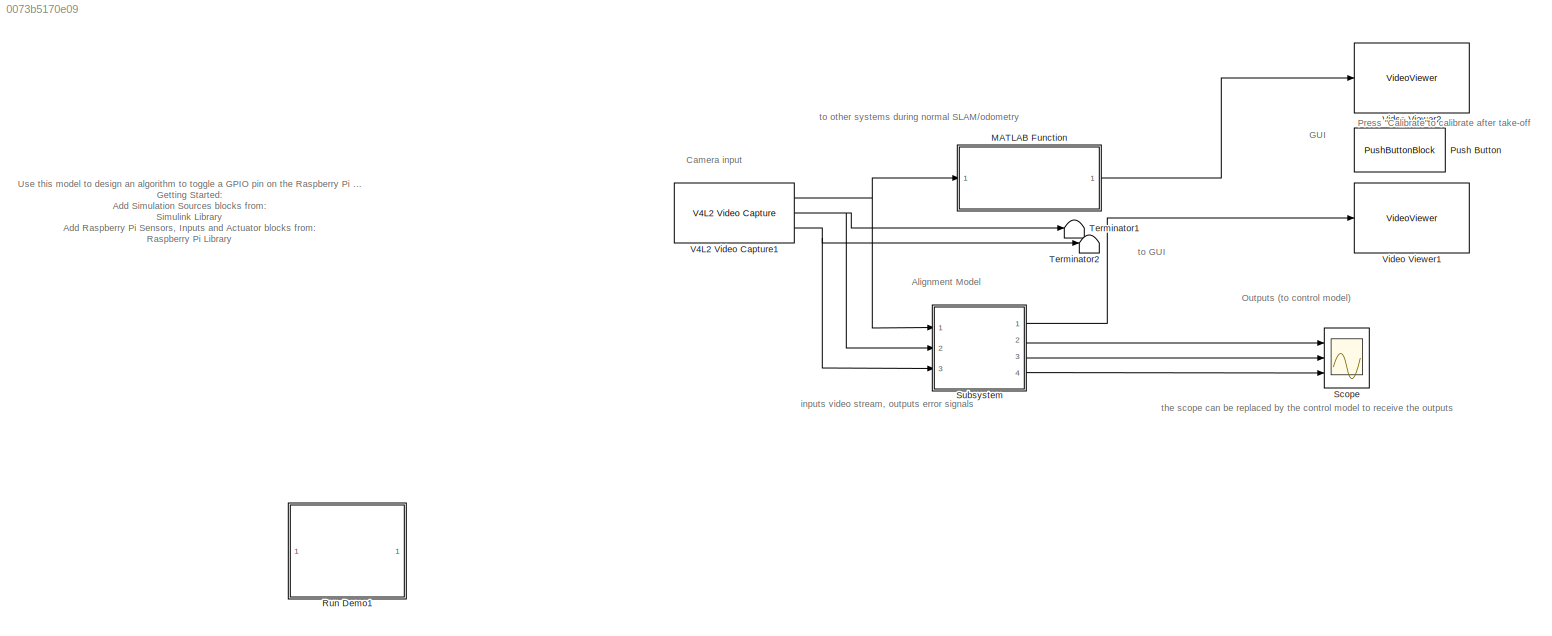
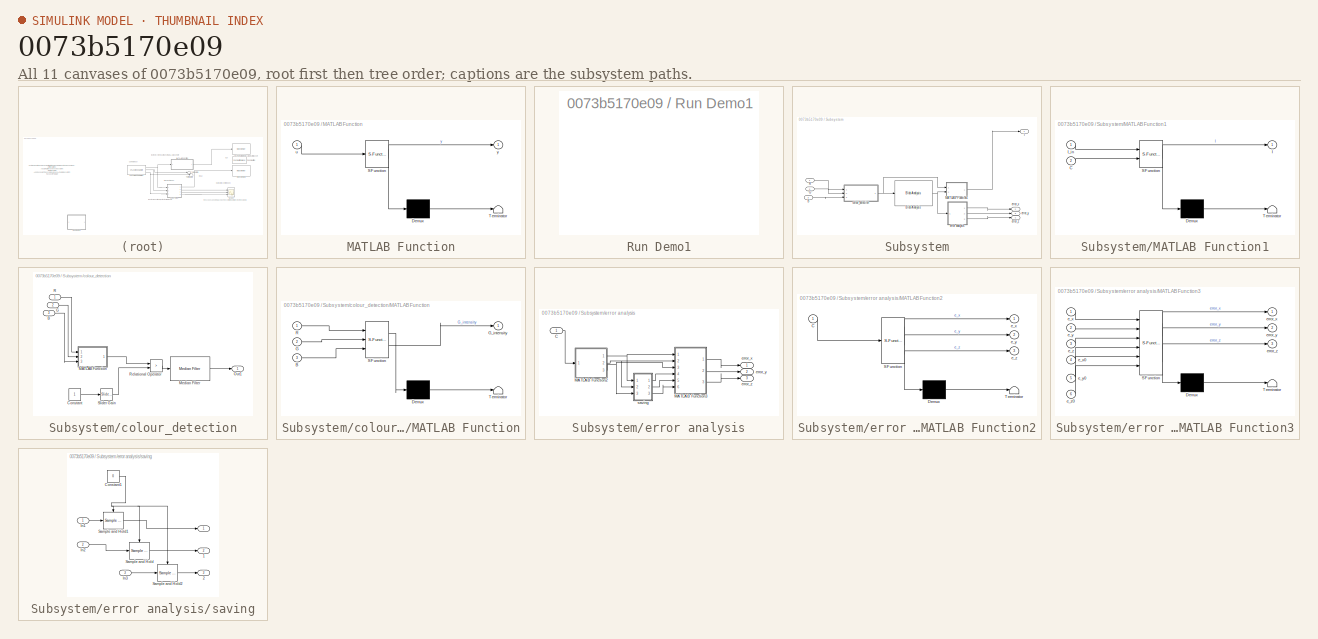
[diagram: thumbnail index - all 11 canvases of the model, root first then tree order]
MODEL slx_0073b5170e09
KIND model
CONFIG AbsTol = auto
CONFIG EnableMultiTasking = on
CONFIG FixedStep = auto
CONFIG MaxStep = auto
CONFIG MinStep = auto
CONFIG RelTol = 1e-3
CONFIG SampleTimeConstraint = Unconstrained
CONFIG Solver = ode45
CONFIG SolverName = ode45
CONFIG StartTime = 0.0
CONFIG StopTime = 10.0
BLOCK [SubSystem] MATLAB Function
  ErrorFcn = Stateflow.Translate.translate
  PermitHierarchicalResolution = ExplicitOnly
  Ports = [1, 1]
  RequestExecContextInheritance = off
  SFBlockType = MATLAB Function
  TreatAsAtomicUnit = on
BLOCK [Demux] MATLAB Function/ Demux 
  Outputs = 1
  Ports = [1, 1]
BLOCK [S-Function] MATLAB Function/ SFunction 
  EnableBusSupport = on
  FunctionName = sf_sfun
  PortCounts = [1 2]
  Ports = [1, 2]
  SFcnIsStateOwnerBlock = off
  SFunctionDeploymentMode = off
  Tag = Stateflow S-Function 5
BLOCK [Terminator] MATLAB Function/ Terminator 
BLOCK [Inport] MATLAB Function/u
BLOCK [Outport] MATLAB Function/y
BLOCK [PushButtonBlock] Push Button
  ButtonText = Callibrate
BLOCK [SubSystem] Run Demo1
  Description = Controls host-side RTDX processing.
  Ports = []
  RequestExecContextInheritance = off
  ShowPortLabels = none
  UserDataPersistent = on
BLOCK [Scope] Scope
  Floating = off
  NumInputPorts = 3
  Ports = [3]
  ScopeSpecificationString = Simulink.scopes.TimeScopeBlockCfg('CurrentConfiguration', extmgr.ConfigurationSet(extmgr.Configuration('Core','General UI',true),extmgr.Configuration('Core','Source UI',true),extmgr.Configuration('Sources','WiredSimulink',true),extmgr.Configuration('Visuals','Time Domain',true,'SerializedDisplays',{struct('MinYLimReal','-22.18632','MaxYLimReal','63.88228','YLabelReal','','MinYLimMag','0.00000','Ma...<+1409ch>
BLOCK [SubSystem] Subsystem
  Ports = [3, 4]
  RequestExecContextInheritance = off
BLOCK [Inport] Subsystem/B
  Port = 3
BLOCK [Reference] Subsystem/Blob Analysis  REF=visionstatistics/Blob Analysis
  Ports = [1, 1]
  SourceBlock = visionstatistics/Blob Analysis
  SourceProductBaseCode = VP
  SourceType = Blob Analysis
  Tag = vipblks_row_conv
BLOCK [Inport] Subsystem/G
  Port = 2
BLOCK [Outport] Subsystem/I
BLOCK [SubSystem] Subsystem/MATLAB Function1
  ErrorFcn = Stateflow.Translate.translate
  PermitHierarchicalResolution = ExplicitOnly
  Ports = [2, 1]
  RequestExecContextInheritance = off
  SFBlockType = MATLAB Function
  TreatAsAtomicUnit = on
BLOCK [Demux] Subsystem/MATLAB Function1/ Demux 
  Outputs = 1
  Ports = [1, 1]
BLOCK [S-Function] Subsystem/MATLAB Function1/ SFunction 
  EnableBusSupport = on
  FunctionName = sf_sfun
  PortCounts = [2 2]
  Ports = [2, 2]
  SFcnIsStateOwnerBlock = off
  SFunctionDeploymentMode = off
  Tag = Stateflow S-Function 1
BLOCK [Terminator] Subsystem/MATLAB Function1/ Terminator 
BLOCK [Inport] Subsystem/MATLAB Function1/C
  Port = 2
BLOCK [Outport] Subsystem/MATLAB Function1/I
BLOCK [Inport] Subsystem/MATLAB Function1/I_in
BLOCK [Inport] Subsystem/R
BLOCK [SubSystem] Subsystem/colour_detection
  Ports = [3, 1]
  RequestExecContextInheritance = off
BLOCK [Inport] Subsystem/colour_detection/B
  Port = 3
BLOCK [Constant] Subsystem/colour_detection/Constant
BLOCK [Inport] Subsystem/colour_detection/G
  Port = 2
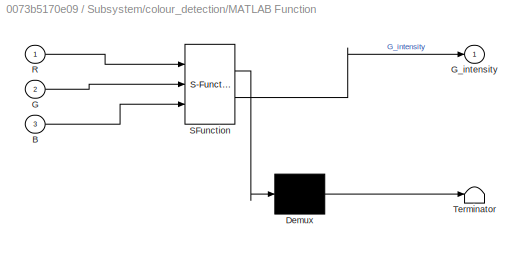
BLOCK [SubSystem] Subsystem/colour_detection/MATLAB Function
  ErrorFcn = Stateflow.Translate.translate
  PermitHierarchicalResolution = ExplicitOnly
  Ports = [3, 1]
  RequestExecContextInheritance = off
  SFBlockType = MATLAB Function
  TreatAsAtomicUnit = on
BLOCK [Demux] Subsystem/colour_detection/MATLAB Function/ Demux 
  Outputs = 1
  Ports = [1, 1]
BLOCK [S-Function] Subsystem/colour_detection/MATLAB Function/ SFunction 
  EnableBusSupport = on
  FunctionName = sf_sfun
  PortCounts = [3 2]
  Ports = [3, 2]
  SFcnIsStateOwnerBlock = off
  SFunctionDeploymentMode = off
  Tag = Stateflow S-Function 2
BLOCK [Terminator] Subsystem/colour_detection/MATLAB Function/ Terminator 
BLOCK [Inport] Subsystem/colour_detection/MATLAB Function/B
  Port = 3
BLOCK [Inport] Subsystem/colour_detection/MATLAB Function/G
  Port = 2
BLOCK [Outport] Subsystem/colour_detection/MATLAB Function/G_intensity
BLOCK [Inport] Subsystem/colour_detection/MATLAB Function/R
BLOCK [Reference] Subsystem/colour_detection/Median Filter  REF=visionanalysis/Median Filter
  Ports = [1, 1]
  SourceBlock = visionanalysis/Median Filter
  SourceProductBaseCode = VP
  SourceType = Median Filter
BLOCK [Outport] Subsystem/colour_detection/Out1
BLOCK [Inport] Subsystem/colour_detection/R
BLOCK [RelationalOperator] Subsystem/colour_detection/Relational Operator
  InputSameDT = off
  Operator = >
  OutDataTypeStr = boolean
  Ports = [2, 1]
  RndMeth = Simplest
BLOCK [Reference] Subsystem/colour_detection/Slider Gain  REF=simulink/Math
Operations/Slider
Gain
  Ports = [1, 1]
  SourceBlock = simulink/Math\nOperations/Slider\nGain
  SourceProductBaseCode = SL
  SourceType = Slider Gain
BLOCK [SubSystem] Subsystem/error analysis
  Ports = [1, 3]
  RequestExecContextInheritance = off
BLOCK [Inport] Subsystem/error analysis/C
BLOCK [SubSystem] Subsystem/error analysis/MATLAB Function2
  ErrorFcn = Stateflow.Translate.translate
  PermitHierarchicalResolution = ExplicitOnly
  Ports = [1, 3]
  RequestExecContextInheritance = off
  SFBlockType = MATLAB Function
  TreatAsAtomicUnit = on
BLOCK [Demux] Subsystem/error analysis/MATLAB Function2/ Demux 
  Outputs = 1
  Ports = [1, 1]
BLOCK [S-Function] Subsystem/error analysis/MATLAB Function2/ SFunction 
  EnableBusSupport = on
  FunctionName = sf_sfun
  PortCounts = [1 4]
  Ports = [1, 4]
  SFcnIsStateOwnerBlock = off
  SFunctionDeploymentMode = off
  Tag = Stateflow S-Function 3
BLOCK [Terminator] Subsystem/error analysis/MATLAB Function2/ Terminator 
BLOCK [Inport] Subsystem/error analysis/MATLAB Function2/C
BLOCK [Outport] Subsystem/error analysis/MATLAB Function2/e_x
BLOCK [Outport] Subsystem/error analysis/MATLAB Function2/e_y
  Port = 2
BLOCK [Outport] Subsystem/error analysis/MATLAB Function2/e_z
  Port = 3
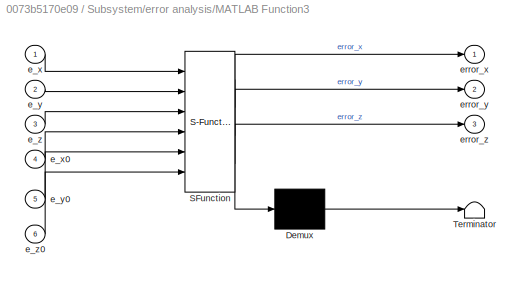
BLOCK [SubSystem] Subsystem/error analysis/MATLAB Function3
  ErrorFcn = Stateflow.Translate.translate
  PermitHierarchicalResolution = ExplicitOnly
  Ports = [6, 3]
  RequestExecContextInheritance = off
  SFBlockType = MATLAB Function
  TreatAsAtomicUnit = on
BLOCK [Demux] Subsystem/error analysis/MATLAB Function3/ Demux 
  Outputs = 1
  Ports = [1, 1]
BLOCK [S-Function] Subsystem/error analysis/MATLAB Function3/ SFunction 
  EnableBusSupport = on
  FunctionName = sf_sfun
  PortCounts = [6 4]
  Ports = [6, 4]
  SFcnIsStateOwnerBlock = off
  SFunctionDeploymentMode = off
  Tag = Stateflow S-Function 4
BLOCK [Terminator] Subsystem/error analysis/MATLAB Function3/ Terminator 
BLOCK [Inport] Subsystem/error analysis/MATLAB Function3/e_x
BLOCK [Inport] Subsystem/error analysis/MATLAB Function3/e_x0
  Port = 4
BLOCK [Inport] Subsystem/error analysis/MATLAB Function3/e_y
  Port = 2
BLOCK [Inport] Subsystem/error analysis/MATLAB Function3/e_y0
  Port = 5
BLOCK [Inport] Subsystem/error analysis/MATLAB Function3/e_z
  Port = 3
BLOCK [Inport] Subsystem/error analysis/MATLAB Function3/e_z0
  Port = 6
BLOCK [Outport] Subsystem/error analysis/MATLAB Function3/error_x
BLOCK [Outport] Subsystem/error analysis/MATLAB Function3/error_y
  Port = 2
BLOCK [Outport] Subsystem/error analysis/MATLAB Function3/error_z
  Port = 3
BLOCK [Outport] Subsystem/error analysis/error_x
BLOCK [Outport] Subsystem/error analysis/error_y
  Port = 2
BLOCK [Outport] Subsystem/error analysis/error_z
  Port = 3
BLOCK [SubSystem] Subsystem/error analysis/saving
  Ports = [3, 3]
  RequestExecContextInheritance = off
BLOCK [Outport] Subsystem/error analysis/saving/ 
BLOCK [Outport] Subsystem/error analysis/saving/ 1
  Port = 2
BLOCK [Outport] Subsystem/error analysis/saving/ 2
  Port = 3
BLOCK [Constant] Subsystem/error analysis/saving/Constant1
  Value = 0
BLOCK [Inport] Subsystem/error analysis/saving/In1
BLOCK [Inport] Subsystem/error analysis/saving/In2
  Port = 2
BLOCK [Inport] Subsystem/error analysis/saving/In3
  Port = 3
BLOCK [Reference] Subsystem/error analysis/saving/Sample and Hold  REF=dspsigops/Sample
and Hold
  Ports = [1, 1, 0, 1]
  SourceBlock = dspsigops/Sample\nand Hold
  SourceProductBaseCode = DS
  SourceType = Sample and Hold
BLOCK [Reference] Subsystem/error analysis/saving/Sample and Hold1  REF=dspsigops/Sample
and Hold
  Ports = [1, 1, 0, 1]
  SourceBlock = dspsigops/Sample\nand Hold
  SourceProductBaseCode = DS
  SourceType = Sample and Hold
BLOCK [Reference] Subsystem/error analysis/saving/Sample and Hold2  REF=dspsigops/Sample
and Hold
  Ports = [1, 1, 0, 1]
  SourceBlock = dspsigops/Sample\nand Hold
  SourceProductBaseCode = DS
  SourceType = Sample and Hold
BLOCK [Outport] Subsystem/error_x
  Port = 2
BLOCK [Outport] Subsystem/error_y
  Port = 3
BLOCK [Outport] Subsystem/error_z
  Port = 4
BLOCK [Terminator] Terminator1
BLOCK [Terminator] Terminator2
BLOCK [Reference] V4L2 Video Capture1  REF=embdlinuxlib/V4L2 Video Capture
  Ports = [0, 3]
  SourceBlock = embdlinuxlib/V4L2 Video Capture
  SourceProductBaseCode = SC_BEAGLEBONE_BLUE,RASPPI
  SourceType = V4L2 Video Capture
BLOCK [VideoViewer] Video Viewer1
  FigPos = [375 586 530.4 373.6]
  Ports = [1]
  ScopeSpecificationString = vipscopes.VideoViewerScopeCfg('CurrentConfiguration', extmgr.ConfigurationSet(extmgr.Configuration('Core','General UI',true),extmgr.Configuration('Core','Source UI',true),extmgr.Configuration('Sources','WiredSimulink',true),extmgr.Configuration('Sources','SimulinkEvent',false),extmgr.Configuration('Sources','Simulink',false),extmgr.Configuration('Sources','File',false),extmgr.Configuration('Source...<+815ch>
BLOCK [VideoViewer] Video Viewer2
  FigPos = [375 586 530.4 373.6]
  Ports = [1]
  ScopeSpecificationString = vipscopes.VideoViewerScopeCfg('CurrentConfiguration', extmgr.ConfigurationSet(extmgr.Configuration('Core','General UI',true),extmgr.Configuration('Core','Source UI',true),extmgr.Configuration('Sources','WiredSimulink',true),extmgr.Configuration('Sources','SimulinkEvent',false),extmgr.Configuration('Sources','Simulink',false),extmgr.Configuration('Sources','File',false),extmgr.Configuration('Source...<+815ch>
ANNOTATION (root): to other systems during normal SLAM/odometry
ANNOTATION (root): Use this model to design an algorithm to toggle a GPIO pin on the Raspberry Pi Hardware. Getting Started: Add Simulation Sources blocks from: Simulink Library Add Raspberry Pi Sensors, Inputs and Actuator blocks from: Raspberry Pi Library Configure Raspberry Pi Hardware: Open Model Configuration Parameters dialog Under the Hardware Implementation option, select the Raspberry Pi hardware from the H...<+325ch>
ANNOTATION (root): Alignment Model
ANNOTATION (root): GUI
ANNOTATION (root): Outputs (to control model)
ANNOTATION (root): Camera input
ANNOTATION (root): Press "Calibrate"to calibrate after take-off
ANNOTATION (root): inputs video stream, outputs error signals
ANNOTATION (root): the scope can be replaced by the control model to receive the outputs
ANNOTATION (root): to GUI
LINE MATLAB Function:1 -> Video Viewer2:1
LINE Subsystem/B:1 -> Subsystem/colour_detection:3
NET Subsystem/Blob Analysis:1 -> Subsystem/MATLAB Function1:2, Subsystem/error analysis:1
LINE Subsystem/G:1 -> Subsystem/colour_detection:2
LINE Subsystem/MATLAB Function1:1 -> Subsystem/I:1
LINE Subsystem/R:1 -> Subsystem/colour_detection:1
LINE Subsystem/colour_detection/B:1 -> Subsystem/colour_detection/MATLAB Function:3
LINE Subsystem/colour_detection/Constant:1 -> Subsystem/colour_detection/Slider Gain:1
LINE Subsystem/colour_detection/G:1 -> Subsystem/colour_detection/MATLAB Function:2
LINE Subsystem/colour_detection/MATLAB Function:1 -> Subsystem/colour_detection/Relational Operator:1
LINE Subsystem/colour_detection/Median Filter:1 -> Subsystem/colour_detection/Out1:1
LINE Subsystem/colour_detection/R:1 -> Subsystem/colour_detection/MATLAB Function:1
LINE Subsystem/colour_detection/Relational Operator:1 -> Subsystem/colour_detection/Median Filter:1
LINE Subsystem/colour_detection/Slider Gain:1 -> Subsystem/colour_detection/Relational Operator:2
NET Subsystem/colour_detection:1 -> Subsystem/Blob Analysis:1, Subsystem/MATLAB Function1:1
LINE Subsystem/error analysis/C:1 -> Subsystem/error analysis/MATLAB Function2:1
NET Subsystem/error analysis/MATLAB Function2:1 -> Subsystem/error analysis/MATLAB Function3:1, Subsystem/error analysis/saving:1
NET Subsystem/error analysis/MATLAB Function2:2 -> Subsystem/error analysis/MATLAB Function3:2, Subsystem/error analysis/saving:2
NET Subsystem/error analysis/MATLAB Function2:3 -> Subsystem/error analysis/MATLAB Function3:3, Subsystem/error analysis/saving:3
LINE Subsystem/error analysis/MATLAB Function3:1 -> Subsystem/error analysis/error_x:1
LINE Subsystem/error analysis/MATLAB Function3:2 -> Subsystem/error analysis/error_y:1
LINE Subsystem/error analysis/MATLAB Function3:3 -> Subsystem/error analysis/error_z:1
NET Subsystem/error analysis/saving/Constant1:1 -> Subsystem/error analysis/saving/Sample and Hold1:trigger, Subsystem/error analysis/saving/Sample and Hold2:trigger, Subsystem/error analysis/saving/Sample and Hold:trigger
LINE Subsystem/error analysis/saving/In1:1 -> Subsystem/error analysis/saving/Sample and Hold1:1
LINE Subsystem/error analysis/saving/In2:1 -> Subsystem/error analysis/saving/Sample and Hold:1
LINE Subsystem/error analysis/saving/In3:1 -> Subsystem/error analysis/saving/Sample and Hold2:1
LINE Subsystem/error analysis/saving/Sample and Hold1:1 -> Subsystem/error analysis/saving/ :1
LINE Subsystem/error analysis/saving/Sample and Hold2:1 -> Subsystem/error analysis/saving/ 2:1
LINE Subsystem/error analysis/saving/Sample and Hold:1 -> Subsystem/error analysis/saving/ 1:1
LINE Subsystem/error analysis/saving:1 -> Subsystem/error analysis/MATLAB Function3:4
LINE Subsystem/error analysis/saving:2 -> Subsystem/error analysis/MATLAB Function3:5
LINE Subsystem/error analysis/saving:3 -> Subsystem/error analysis/MATLAB Function3:6
LINE Subsystem/error analysis:1 -> Subsystem/error_x:1
LINE Subsystem/error analysis:2 -> Subsystem/error_y:1
LINE Subsystem/error analysis:3 -> Subsystem/error_z:1
LINE Subsystem:1 -> Video Viewer1:1
LINE Subsystem:2 -> Scope:1
LINE Subsystem:3 -> Scope:2
LINE Subsystem:4 -> Scope:3
NET V4L2 Video Capture1:1 -> MATLAB Function:1, Subsystem:1
NET V4L2 Video Capture1:2 -> Subsystem:2, Terminator1:1
NET V4L2 Video Capture1:3 -> Subsystem:3, Terminator2:1
note: NET lines group one-source signal fan-out (src -> all destinations, sorted); 1:1 wires keep LINE
CHART Subsystem/MATLAB Function1 states=1 transitions=1
  STATE_LABEL 'eML_blk_kernel()'
  STATE_LABEL 'SCRIPT:\nfunction I = fcn(I_in,C)\nw = length(I_in(1,:));\nh = length(I_in(:,1));\nI = I_in;\nfor i = 1:length(C)\nI(:,C(i,1)) = ones(h,1); % vertical bars\nI(C(i,2),:) = ones(1,w); % horizontal bars\nend'
CHART Subsystem/colour_detection/MATLAB Function states=1 transitions=1
  STATE_LABEL 'eML_blk_kernel()'
  STATE_LABEL 'SCRIPT:\nfunction G_intensity  = fcn(R,G,B)\n\nG_intensity = G - R./2 - B./2;\n\n'
CHART Subsystem/error analysis/MATLAB Function2 states=1 transitions=1
  STATE_LABEL 'eML_blk_kernel()'
  STATE_LABEL 'SCRIPT:\nfunction [e_x, e_y, e_z] = distances(C) % note everything is in pixels\n\n% input C gives a 3-by-2 matrix in in the form [x1 y1 ; x2 y2 ; x3 y3] of\n% the coordinates of the centroids\n% (possible input that can be obtained from blob analysis is also blob area\n% which can be used to identify the different blobs)\nif length(C)==3\n    C_sorted = sortrows(C); % sort so rows 1-3 correspond to blobs...<+330ch>'
CHART Subsystem/error analysis/MATLAB Function3 states=1 transitions=1
  STATE_LABEL 'eML_blk_kernel()'
  STATE_LABEL 'SCRIPT:\nfunction [error_x,error_y,error_z] = fcn(e_x,e_y,e_z,e_x0,e_y0,e_z0)\n\nerror_x = e_x-e_x0;\nerror_z = e_z-e_z0;\nerror_y = e_y-e_y0;'
CHART MATLAB Function states=1 transitions=1
  STATE_LABEL 'eML_blk_kernel()'
  STATE_LABEL 'SCRIPT:\nfunction y = PedestrianTracking(u)\n[obj, tracks, full, FrameWithTracker] = PedestrianTracker();\nobjs = obj;\ntrackss = tracks;\ny = [full, FrameWithTracker];\n'
CHART  states=0 transitions=0
CHART  states=0 transitions=0
CHART  states=0 transitions=0
CHART  states=0 transitions=0
CHART  states=0 transitions=0
